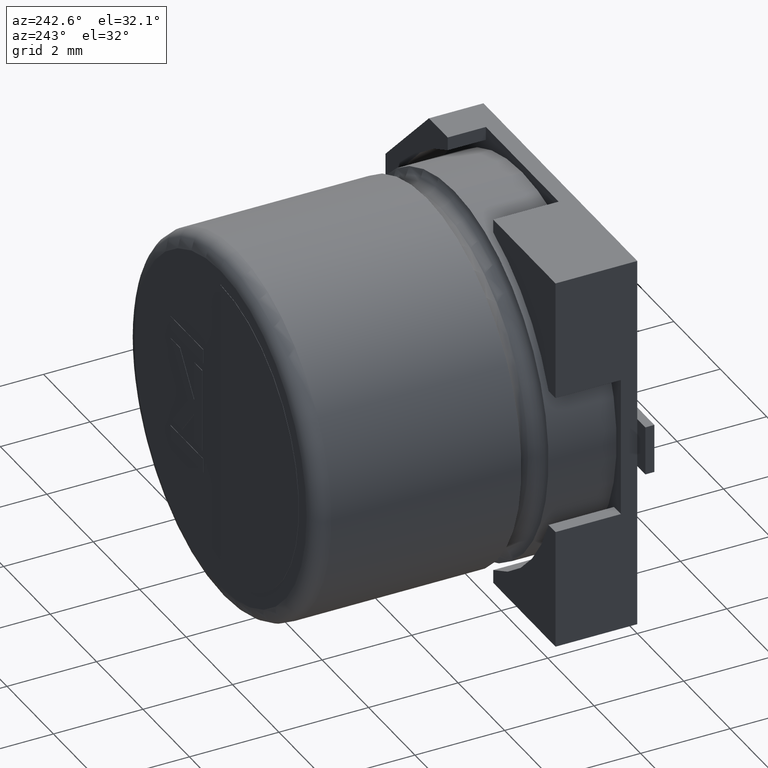
[diagram: clean part render]
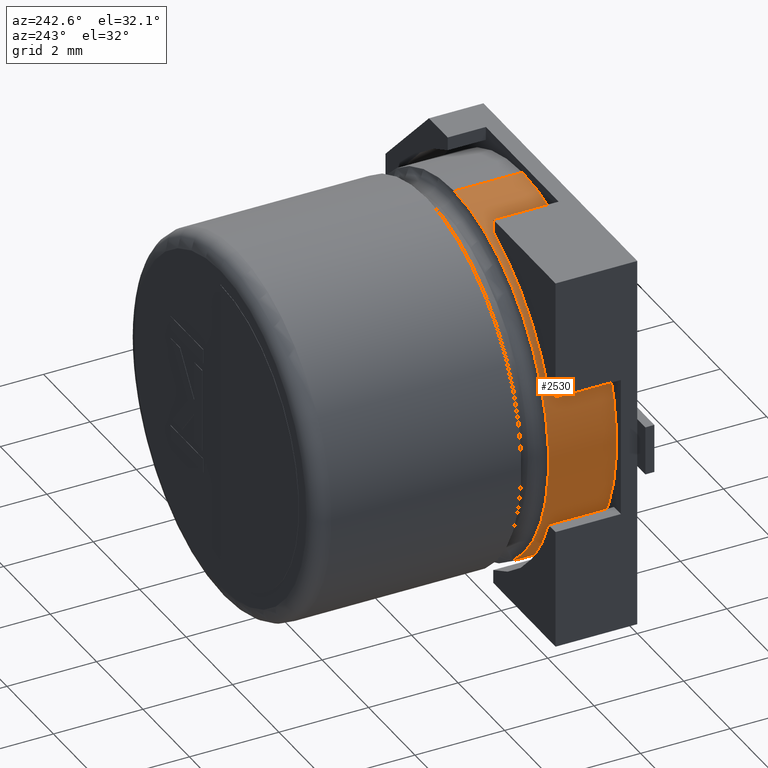
[diagram: same view with one face highlighted and labeled with its STEP entity id]
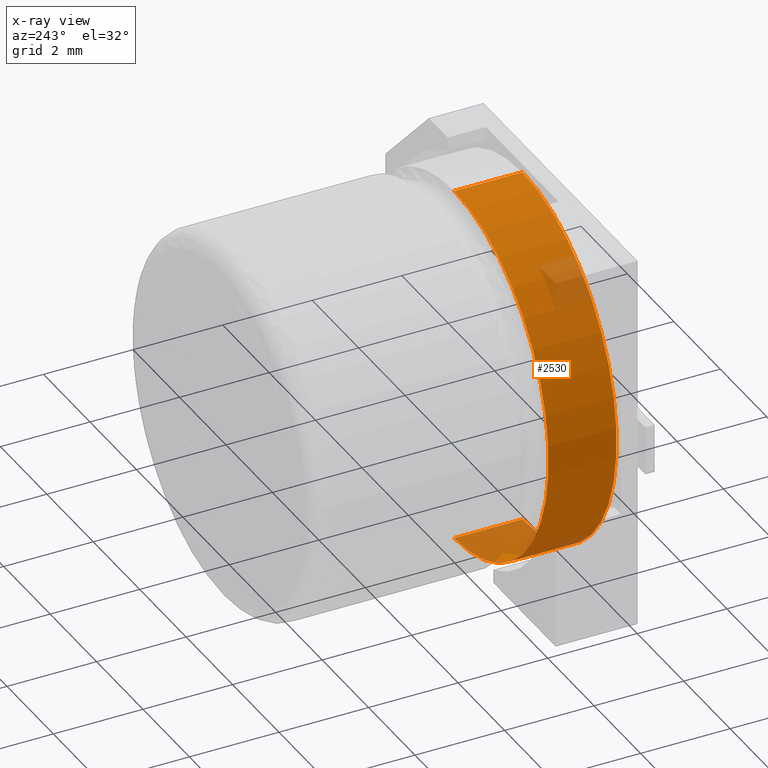
[diagram: x-ray of the same camera — body ghosted, the highlighted face saturated]
A machine part, auxiliary view. The second image highlights one B-rep face of the part: STEP entity #2530.
The next image is the same camera in x-ray: the body ghosted, the highlighted face saturated — about 14% of this face is hidden behind the body in this view.
In plain terms, the highlighted cylindrical surface (partial cylindrical patch) has radius 4.0626 mm, axis along (-0, -1, -0).
Its self-contained STEP definition (entity closure, byte-faithful):
#103 = CIRCLE ( 'NONE', #785, 4.062574999999998900 ) ;
#245 = CYLINDRICAL_SURFACE ( 'NONE', #1042, 4.062574999999998900 ) ;
#287 = VECTOR ( 'NONE', #1240, 1000.000000000000000 ) ;
#288 = CARTESIAN_POINT ( 'NONE',  ( 4.250000000000000000, 7.099999999999999600, -4.250000000000000000 ) ) ;
#336 = FACE_OUTER_BOUND ( 'NONE', #1354, .T. ) ;
#394 = AXIS2_PLACEMENT_3D ( 'NONE', #3082, #2780, #1527 ) ;
#563 = ORIENTED_EDGE ( 'NONE', *, *, #1128, .T. ) ;
#573 = ORIENTED_EDGE ( 'NONE', *, *, #724, .T. ) ;
#630 = EDGE_CURVE ( 'NONE', #2767, #1722, #3301, .T. ) ;
#679 = DIRECTION ( 'NONE',  ( -0.0000000000000000000, -1.000000000000000000, -0.0000000000000000000 ) ) ;
#724 = EDGE_CURVE ( 'NONE', #1722, #855, #2225, .T. ) ;
#785 = AXIS2_PLACEMENT_3D ( 'NONE', #923, #679, #2983 ) ;
#855 = VERTEX_POINT ( 'NONE', #2591 ) ;
#923 = CARTESIAN_POINT ( 'NONE',  ( 4.250000000000000000, 1.885590000000000100, -4.250000000000000000 ) ) ;
#1042 = AXIS2_PLACEMENT_3D ( 'NONE', #288, #1851, #2368 ) ;
#1128 = EDGE_CURVE ( 'NONE', #2334, #2767, #103, .T. ) ;
#1240 = DIRECTION ( 'NONE',  ( -0.0000000000000000000, -1.000000000000000000, -0.0000000000000000000 ) ) ;
#1354 = EDGE_LOOP ( 'NONE', ( #2123, #563, #2434, #573 ) ) ;
#1527 = DIRECTION ( 'NONE',  ( 0.0000000000000000000, 0.0000000000000000000, 1.000000000000000000 ) ) ;
#1722 = VERTEX_POINT ( 'NONE', #3290 ) ;
#1851 = DIRECTION ( 'NONE',  ( -0.0000000000000000000, -1.000000000000000000, -0.0000000000000000000 ) ) ;
#1939 = CARTESIAN_POINT ( 'NONE',  ( 4.250000000000000000, 7.099999999999999600, -8.312574999999998900 ) ) ;
#2051 = CARTESIAN_POINT ( 'NONE',  ( 4.250000000000000900, 1.885590000000000100, -0.1874250000000014800 ) ) ;
#2123 = ORIENTED_EDGE ( 'NONE', *, *, #2700, .F. ) ;
#2225 = CIRCLE ( 'NONE', #394, 4.062574999999998900 ) ;
#2253 = CARTESIAN_POINT ( 'NONE',  ( 4.250000000000000000, 1.885590000000000100, -8.312574999999998900 ) ) ;
#2334 = VERTEX_POINT ( 'NONE', #2051 ) ;
#2368 = DIRECTION ( 'NONE',  ( 0.0000000000000000000, 0.0000000000000000000, -1.000000000000000000 ) ) ;
#2434 = ORIENTED_EDGE ( 'NONE', *, *, #630, .T. ) ;
#2530 = ADVANCED_FACE ( 'NONE', ( #336 ), #245, .T. ) ;
#2540 = VECTOR ( 'NONE', #2985, 1000.000000000000000 ) ;
#2591 = CARTESIAN_POINT ( 'NONE',  ( 4.250000000000000900, 0.3650000000000001000, -0.1874250000000014800 ) ) ;
#2700 = EDGE_CURVE ( 'NONE', #2334, #855, #3418, .T. ) ;
#2767 = VERTEX_POINT ( 'NONE', #2253 ) ;
#2780 = DIRECTION ( 'NONE',  ( 0.0000000000000000000, 1.000000000000000000, 0.0000000000000000000 ) ) ;
#2983 = DIRECTION ( 'NONE',  ( 0.0000000000000000000, 0.0000000000000000000, -1.000000000000000000 ) ) ;
#2985 = DIRECTION ( 'NONE',  ( -0.0000000000000000000, -1.000000000000000000, -0.0000000000000000000 ) ) ;
#3054 = CARTESIAN_POINT ( 'NONE',  ( 4.250000000000000900, 7.099999999999999600, -0.1874250000000014800 ) ) ;
#3082 = CARTESIAN_POINT ( 'NONE',  ( 4.250000000000000000, 0.3650000000000001000, -4.250000000000000000 ) ) ;
#3290 = CARTESIAN_POINT ( 'NONE',  ( 4.250000000000000000, 0.3650000000000001000, -8.312574999999998900 ) ) ;
#3301 = LINE ( 'NONE', #1939, #2540 ) ;
#3418 = LINE ( 'NONE', #3054, #287 ) ;